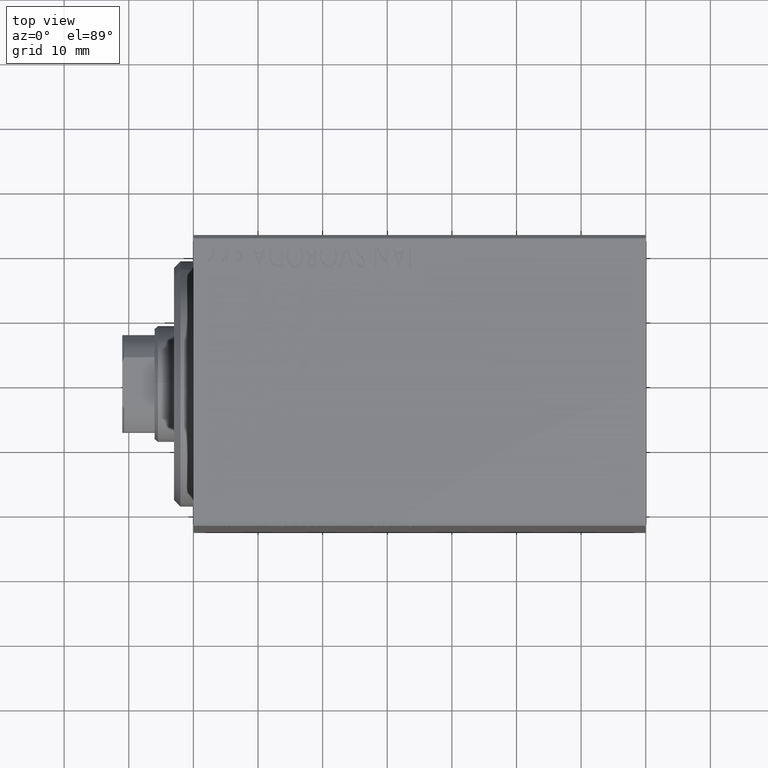
[diagram: clean part render]
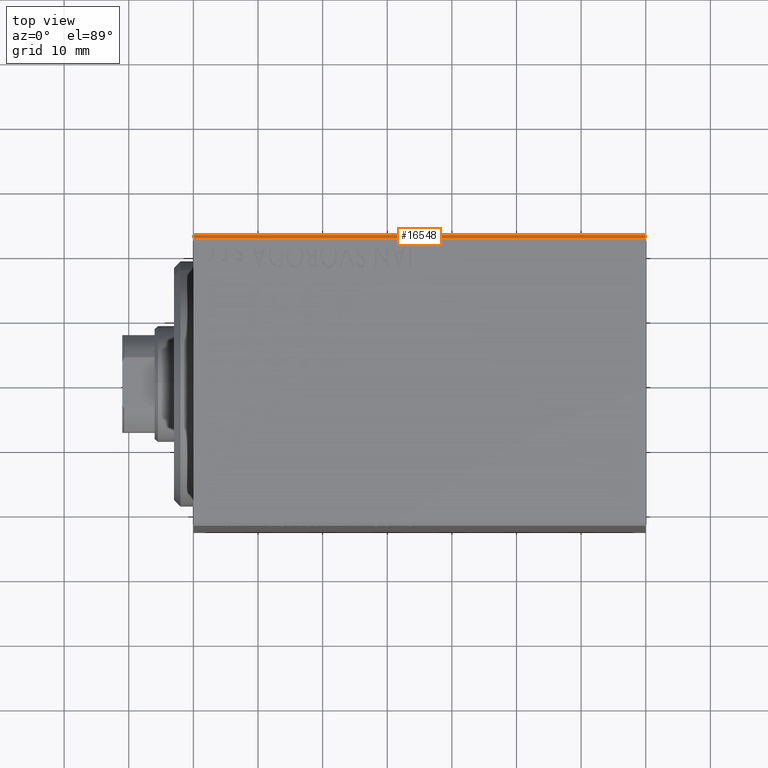
[diagram: same view with one face highlighted and labeled with its STEP entity id]
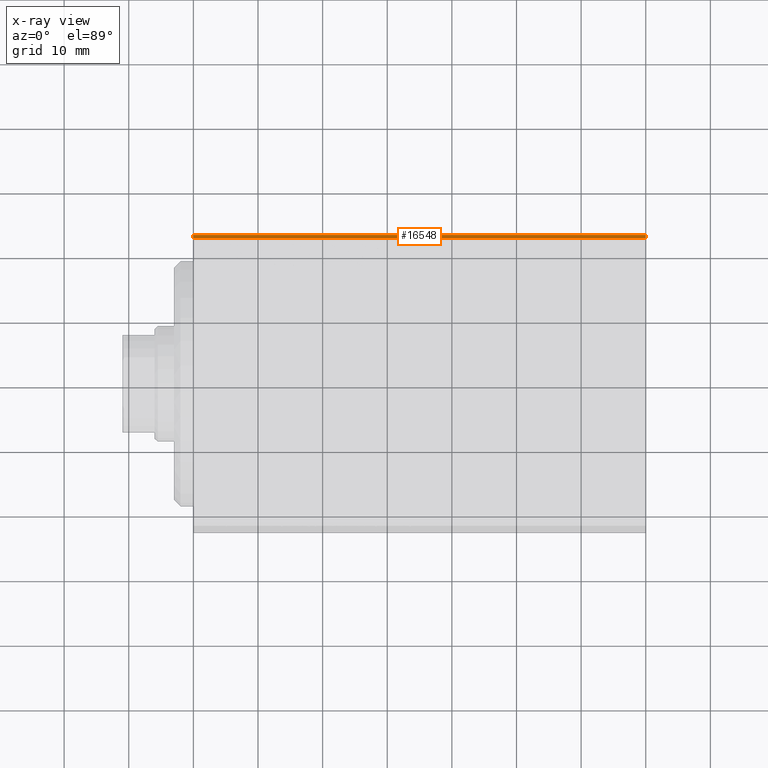
[diagram: x-ray of the same camera — body ghosted, the highlighted face saturated]
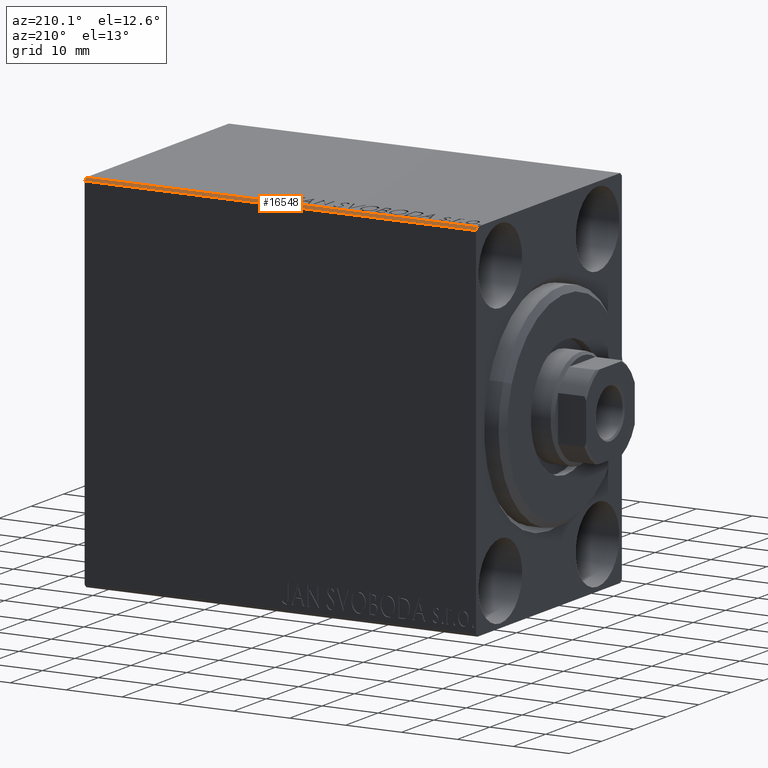
[diagram: same view with one face highlighted and labeled with its STEP entity id]
A machine part, top view. The second image highlights one B-rep face of the part: STEP entity #16548.
The next image is the same camera in x-ray: the body ghosted, the highlighted face saturated — about 0% of this face is hidden behind the body in this view.
A second angle (auxiliary view) of the same face is appended — the face is thin or edge-on in the first view.
In plain terms, the highlighted planar face has unit normal (-0, -0.7071, -0.7071).
Its self-contained STEP definition (entity closure, byte-faithful):
#1264 = VERTEX_POINT ( 'NONE', #2029 ) ;
#2029 = CARTESIAN_POINT ( 'NONE',  ( 70.00000000000000000, 21.99999999999999289, 32.50000000000000000 ) ) ;
#3783 = EDGE_CURVE ( 'NONE', #16251, #1264, #33320, .T. ) ;
#5211 = AXIS2_PLACEMENT_3D ( 'NONE', #36521, #23588, #33188 ) ;
#5474 = EDGE_LOOP ( 'NONE', ( #7024, #27411, #33157, #43554 ) ) ;
#6177 = DIRECTION ( 'NONE',  ( -0.000000000000000000, -0.7071067811865425767, 0.7071067811865525687 ) ) ;
#7024 = ORIENTED_EDGE ( 'NONE', *, *, #3783, .F. ) ;
#9367 = FACE_OUTER_BOUND ( 'NONE', #5474, .T. ) ;
#9729 = CARTESIAN_POINT ( 'NONE',  ( 70.00000000000000000, 27.25000000000014921, 27.24999999999976907 ) ) ;
#10202 = VERTEX_POINT ( 'NONE', #24713 ) ;
#10642 = LINE ( 'NONE', #24219, #10954 ) ;
#10954 = VECTOR ( 'NONE', #16896, 1000.000000000000000 ) ;
#12573 = LINE ( 'NONE', #43283, #29605 ) ;
#14201 = DIRECTION ( 'NONE',  ( -0.000000000000000000, 0.7071067811865425767, -0.7071067811865525687 ) ) ;
#14998 = CARTESIAN_POINT ( 'NONE',  ( 70.00000000000000000, 22.49999999999999289, 31.99999999999999289 ) ) ;
#16251 = VERTEX_POINT ( 'NONE', #14998 ) ;
#16548 = ADVANCED_FACE ( 'NONE', ( #9367 ), #22943, .F. ) ;
#16896 = DIRECTION ( 'NONE',  ( 1.000000000000000000, 0.000000000000000000, 0.000000000000000000 ) ) ;
#17804 = VERTEX_POINT ( 'NONE', #22846 ) ;
#20172 = VECTOR ( 'NONE', #6177, 999.9999999999998863 ) ;
#20465 = LINE ( 'NONE', #24017, #20792 ) ;
#20792 = VECTOR ( 'NONE', #14201, 999.9999999999998863 ) ;
#22846 = CARTESIAN_POINT ( 'NONE',  ( 0.000000000000000000, 21.99999999999999289, 32.50000000000000000 ) ) ;
#22943 = PLANE ( 'NONE',  #5211 ) ;
#23080 = EDGE_CURVE ( 'NONE', #10202, #16251, #10642, .T. ) ;
#23588 = DIRECTION ( 'NONE',  ( -0.000000000000000000, -0.7071067811865524577, -0.7071067811865425767 ) ) ;
#24017 = CARTESIAN_POINT ( 'NONE',  ( 0.000000000000000000, 21.99999999999999289, 32.50000000000000000 ) ) ;
#24219 = CARTESIAN_POINT ( 'NONE',  ( 70.00000000000000000, 22.49999999999999289, 31.99999999999999289 ) ) ;
#24713 = CARTESIAN_POINT ( 'NONE',  ( 0.000000000000000000, 22.49999999999999289, 31.99999999999999289 ) ) ;
#26152 = DIRECTION ( 'NONE',  ( -1.000000000000000000, 0.000000000000000000, 0.000000000000000000 ) ) ;
#27411 = ORIENTED_EDGE ( 'NONE', *, *, #23080, .F. ) ;
#29605 = VECTOR ( 'NONE', #26152, 1000.000000000000000 ) ;
#33157 = ORIENTED_EDGE ( 'NONE', *, *, #43705, .F. ) ;
#33188 = DIRECTION ( 'NONE',  ( -1.000000000000000000, 0.000000000000000000, 0.000000000000000000 ) ) ;
#33293 = EDGE_CURVE ( 'NONE', #1264, #17804, #12573, .T. ) ;
#33320 = LINE ( 'NONE', #9729, #20172 ) ;
#36521 = CARTESIAN_POINT ( 'NONE',  ( 70.00000000000000000, 21.99999999999999289, 32.50000000000000000 ) ) ;
#43283 = CARTESIAN_POINT ( 'NONE',  ( 70.00000000000000000, 21.99999999999999289, 32.50000000000000000 ) ) ;
#43554 = ORIENTED_EDGE ( 'NONE', *, *, #33293, .F. ) ;
#43705 = EDGE_CURVE ( 'NONE', #17804, #10202, #20465, .T. ) ;